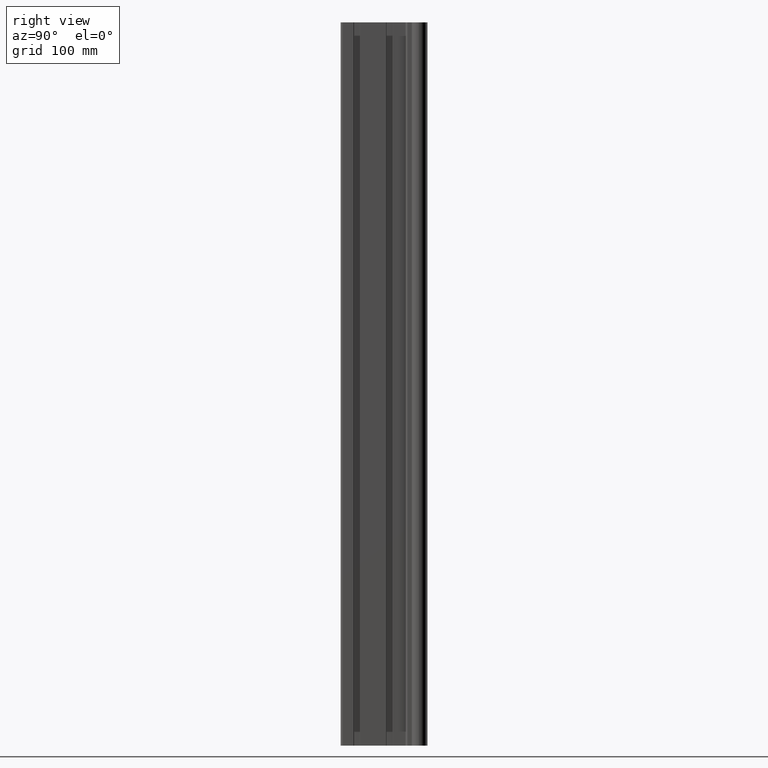
[diagram: clean part render]
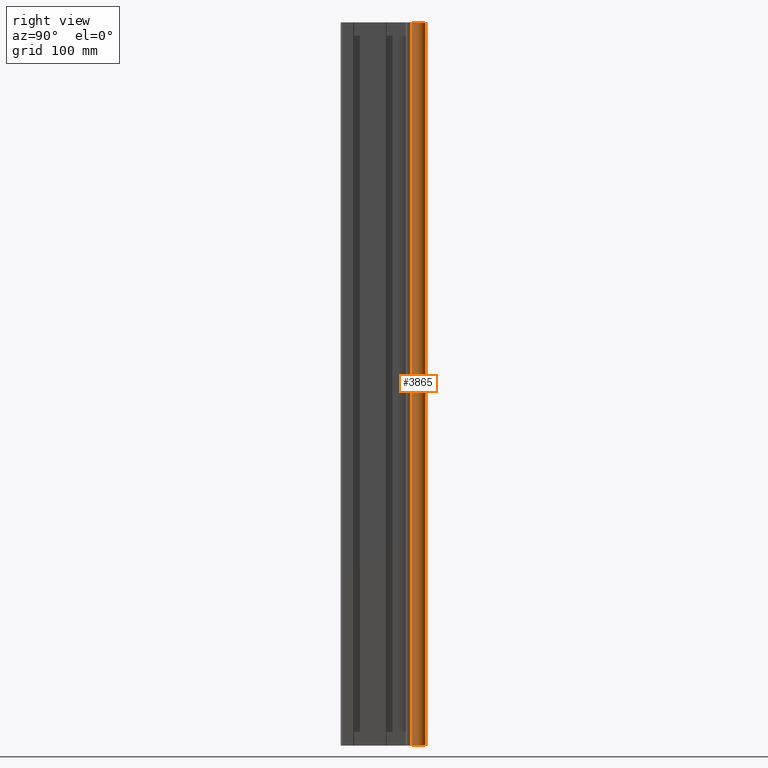
[diagram: same view with one face highlighted and labeled with its STEP entity id]
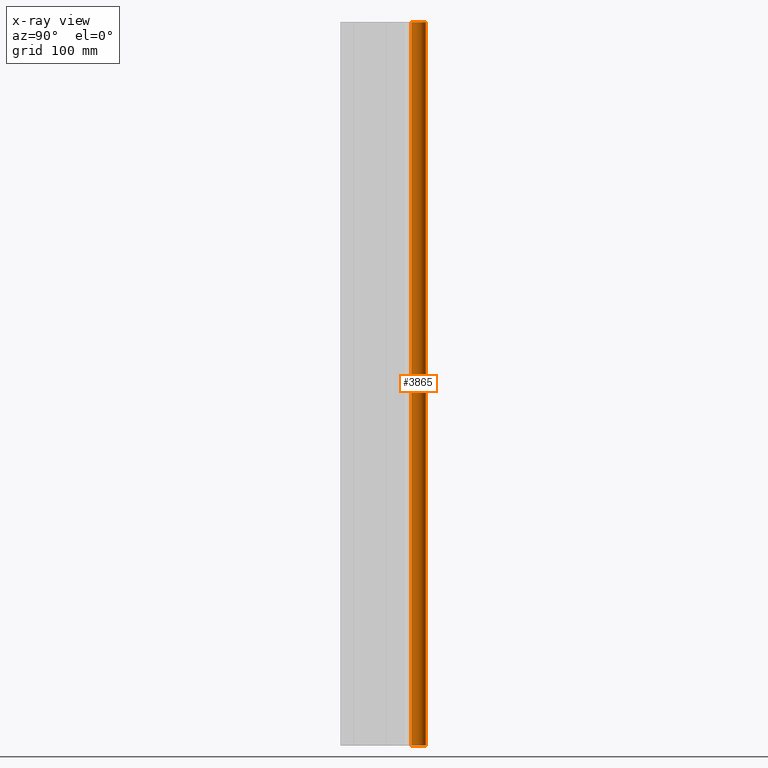
[diagram: x-ray of the same camera — body ghosted, the highlighted face saturated]
A machine part, right view. The second image highlights one B-rep face of the part: STEP entity #3865.
The next image is the same camera in x-ray: the body ghosted, the highlighted face saturated — about 0% of this face is hidden behind the body in this view.
In plain terms, the highlighted cylindrical surface (bore or boss wall) has radius 10 mm, axis along (0, -0, 1).
Its self-contained STEP definition (entity closure, byte-faithful):
#311=FACE_OUTER_BOUND('',#518,.T.);
#518=EDGE_LOOP('',(#3548,#3549,#3550,#3551));
#757=CIRCLE('',#4364,10.);
#758=CIRCLE('',#4365,10.);
#1097=LINE('',#6745,#1436);
#1436=VECTOR('',#5575,10.);
#1821=VERTEX_POINT('',#6742);
#1822=VERTEX_POINT('',#6744);
#2397=EDGE_CURVE('',#1821,#1821,#757,.T.);
#2398=EDGE_CURVE('',#1821,#1822,#1097,.T.);
#2399=EDGE_CURVE('',#1822,#1822,#758,.T.);
#3548=ORIENTED_EDGE('',*,*,#2397,.F.);
#3549=ORIENTED_EDGE('',*,*,#2398,.T.);
#3550=ORIENTED_EDGE('',*,*,#2399,.F.);
#3551=ORIENTED_EDGE('',*,*,#2398,.F.);
#3672=CYLINDRICAL_SURFACE('',#4363,10.);
#3865=ADVANCED_FACE('',(#311),#3672,.T.);
#4363=AXIS2_PLACEMENT_3D('',#6741,#5571,#5572);
#4364=AXIS2_PLACEMENT_3D('',#6743,#5573,#5574);
#4365=AXIS2_PLACEMENT_3D('',#6746,#5576,#5577);
#5571=DIRECTION('center_axis',(0.,0.,1.));
#5572=DIRECTION('ref_axis',(-1.,0.,0.));
#5573=DIRECTION('center_axis',(0.,0.,1.));
#5574=DIRECTION('ref_axis',(-1.,0.,0.));
#5575=DIRECTION('',(0.,0.,-1.));
#5576=DIRECTION('center_axis',(0.,0.,-1.));
#5577=DIRECTION('ref_axis',(-1.,0.,0.));
#6741=CARTESIAN_POINT('Origin',(0.,0.,0.));
#6742=CARTESIAN_POINT('',(10.,1.22464679914735E-15,1000.));
#6743=CARTESIAN_POINT('Origin',(0.,0.,1000.));
#6744=CARTESIAN_POINT('',(10.,1.22464679914735E-15,0.));
#6745=CARTESIAN_POINT('',(10.,1.22464679914735E-15,0.));
#6746=CARTESIAN_POINT('Origin',(0.,0.,0.));